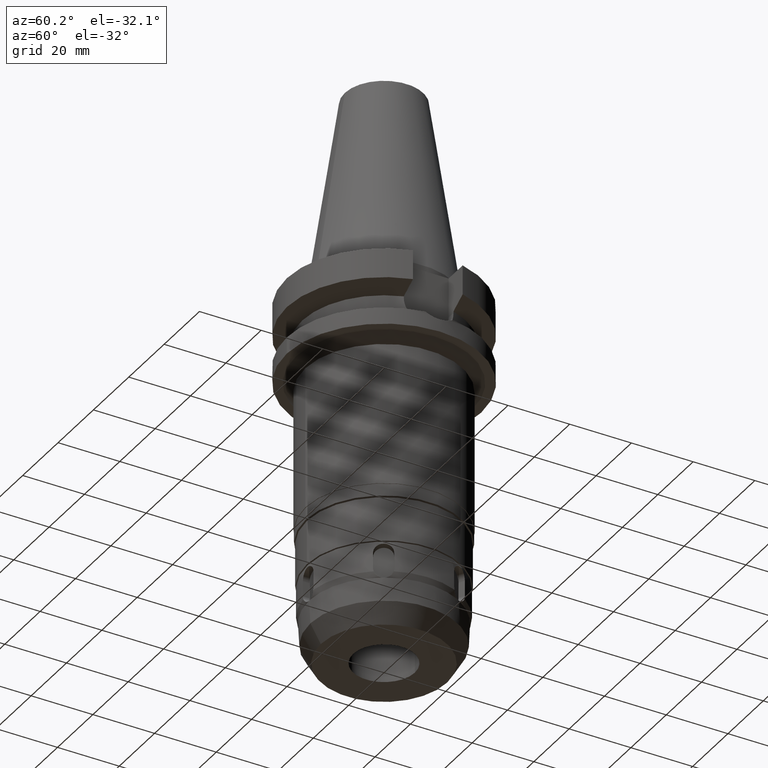
[diagram: clean part render]
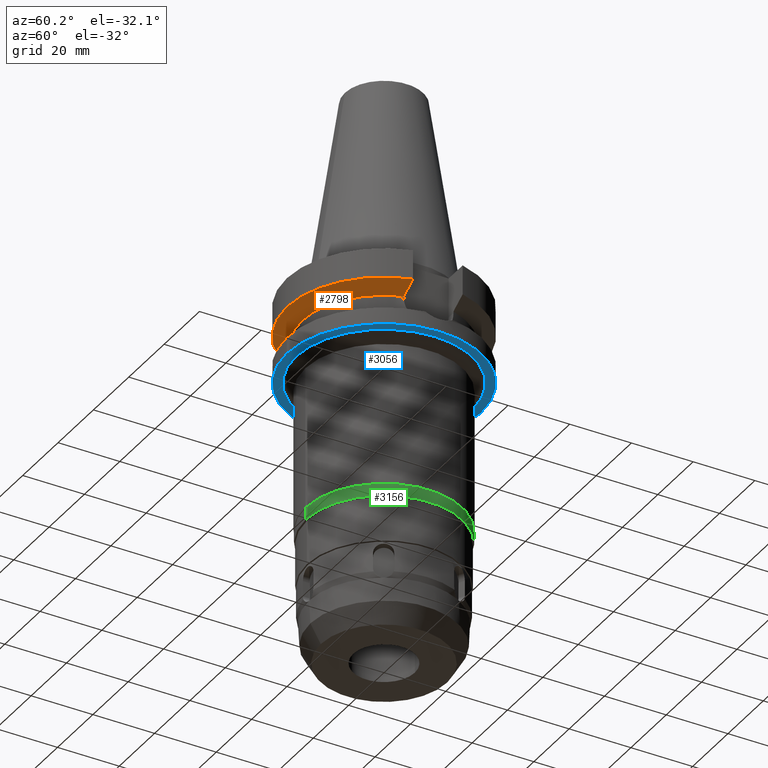
[diagram: same view with three faces highlighted in distinct colors, each labeled with its STEP entity id]
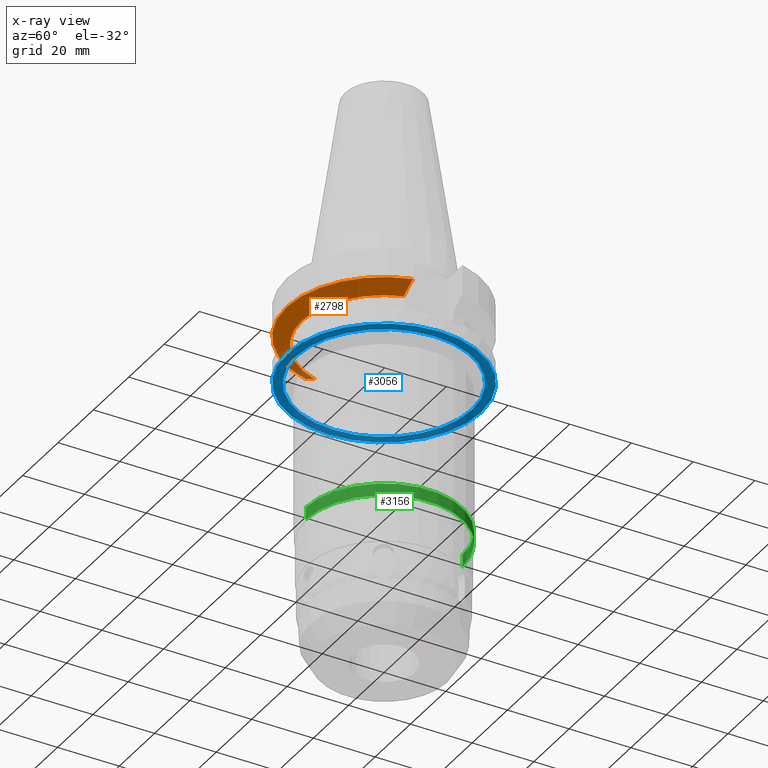
[diagram: x-ray of the same camera — body ghosted, the three highlighted faces saturated]
A machine part, auxiliary view with three faces highlighted in distinct colors.
The next image is the same camera in x-ray (body ghosted, the three faces saturated) — at least one of them is partly hidden behind the body in this view.
Their STEP definitions:

[orange] entity #2798 — the highlighted conical surface has half-angle 60 deg.
#207=CARTESIAN_POINT('',(-3.045402291362E1,-8.049999278069E0,
-1.156551215495E1));
#208=CARTESIAN_POINT('',(-2.987645774173E1,-8.049999278069E0,
-1.188789690590E1));
#209=CARTESIAN_POINT('',(-2.872091199309E1,-8.049999725664E0,
-1.253193850186E1));
#210=CARTESIAN_POINT('',(-2.698538662959E1,-8.050002043075E0,
-1.349404338032E1));
#211=CARTESIAN_POINT('',(-2.582730530415E1,-8.049995415717E0,
-1.413348340906E1));
#212=CARTESIAN_POINT('',(-2.524772413123E1,-8.049995415717E0,
-1.445229202852E1));
#251=CARTESIAN_POINT('',(0.E0,1.065333950388E-14,-1.156550565267E1));
#252=DIRECTION('',(0.E0,0.E0,1.E0));
#253=DIRECTION('',(-9.667943721520E-1,-2.555555555555E-1,0.E0));
#254=AXIS2_PLACEMENT_3D('',#251,#252,#253);
#259=CARTESIAN_POINT('',(0.E0,1.065333950388E-14,-1.156550565267E1));
#260=DIRECTION('',(0.E0,0.E0,1.E0));
#261=DIRECTION('',(0.E0,-1.E0,0.E0));
#262=AXIS2_PLACEMENT_3D('',#259,#260,#261);
#267=CARTESIAN_POINT('',(0.E0,1.065333950388E-14,-1.445225699861E1));
#268=DIRECTION('',(0.E0,0.E0,-1.E0));
#269=DIRECTION('',(9.527442516822E-1,-3.037735849057E-1,0.E0));
#270=AXIS2_PLACEMENT_3D('',#267,#268,#269);
#275=CARTESIAN_POINT('',(0.E0,1.065333950388E-14,-1.445225699861E1));
#276=DIRECTION('',(0.E0,0.E0,-1.E0));
#277=DIRECTION('',(0.E0,-1.E0,0.E0));
#278=AXIS2_PLACEMENT_3D('',#275,#276,#277);
#297=CARTESIAN_POINT('',(2.524772216368E1,-8.050001586691E0,-1.445224487490E1));
#298=CARTESIAN_POINT('',(2.582727361430E1,-8.050001586691E0,-1.413345267923E1));
#299=CARTESIAN_POINT('',(2.698547395453E1,-8.049999812067E0,-1.349419206939E1));
#300=CARTESIAN_POINT('',(2.872100163492E1,-8.049998277729E0,-1.253209184318E1));
#301=CARTESIAN_POINT('',(2.987642830899E1,-8.050004143922E0,-1.188786874689E1));
#302=CARTESIAN_POINT('',(3.045402162741E1,-8.050004143922E0,-1.156546832598E1));
#2532=CARTESIAN_POINT('',(-2.524772413123E1,-8.049995415717E0,
-1.445229202852E1));
#2533=VERTEX_POINT('',#2532);
#2534=CARTESIAN_POINT('',(2.524772266958E1,-8.05E0,-1.445225699861E1));
#2535=CARTESIAN_POINT('',(0.E0,-2.65E1,-1.445225699861E1));
#2536=VERTEX_POINT('',#2534);
#2537=VERTEX_POINT('',#2535);
#2548=CARTESIAN_POINT('',(-3.045402291362E1,-8.049999278069E0,
-1.156551215495E1));
#2549=VERTEX_POINT('',#2548);
#2575=CARTESIAN_POINT('',(0.E0,-3.15E1,-1.156550565267E1));
#2576=CARTESIAN_POINT('',(3.045402272279E1,-8.049999999999E0,
-1.156550565267E1));
#2577=VERTEX_POINT('',#2575);
#2578=VERTEX_POINT('',#2576);
#2782=CARTESIAN_POINT('',(0.E0,1.065333950388E-14,-1.300888132564E1));
#2783=DIRECTION('',(0.E0,0.E0,1.E0));
#2784=DIRECTION('',(0.E0,1.E0,0.E0));
#2785=AXIS2_PLACEMENT_3D('',#2782,#2783,#2784);
#2786=CONICAL_SURFACE('',#2785,2.9E1,6.E1);
#2787=ORIENTED_EDGE('',*,*,#2754,.F.);
#2789=ORIENTED_EDGE('',*,*,#2788,.T.);
#2791=ORIENTED_EDGE('',*,*,#2790,.T.);
#2793=ORIENTED_EDGE('',*,*,#2792,.F.);
#2794=ORIENTED_EDGE('',*,*,#2767,.T.);
#2795=ORIENTED_EDGE('',*,*,#2765,.T.);
#2796=EDGE_LOOP('',(#2787,#2789,#2791,#2793,#2794,#2795));
#2797=FACE_OUTER_BOUND('',#2796,.F.);
#213=B_SPLINE_CURVE_WITH_KNOTS('',3,(#207,#208,#209,#210,#211,#212),
.UNSPECIFIED.,.F.,.F.,(4,1,1,4),(0.E0,3.333333333333E-1,6.666666666667E-1,1.E0),
.UNSPECIFIED.);
#255=CIRCLE('',#254,3.15E1);
#263=CIRCLE('',#262,3.15E1);
#271=CIRCLE('',#270,2.65E1);
#279=CIRCLE('',#278,2.65E1);
#303=B_SPLINE_CURVE_WITH_KNOTS('',3,(#297,#298,#299,#300,#301,#302),
.UNSPECIFIED.,.F.,.F.,(4,1,1,4),(0.E0,3.333333333333E-1,6.666666666667E-1,1.E0),
.UNSPECIFIED.);
#2754=EDGE_CURVE('',#2549,#2533,#213,.T.);
#2765=EDGE_CURVE('',#2537,#2533,#279,.T.);
#2767=EDGE_CURVE('',#2536,#2537,#271,.T.);
#2788=EDGE_CURVE('',#2549,#2577,#255,.T.);
#2790=EDGE_CURVE('',#2577,#2578,#263,.T.);
#2792=EDGE_CURVE('',#2536,#2578,#303,.T.);
#2798=ADVANCED_FACE('',(#2797),#2786,.T.);

[blue] entity #3056 — the highlighted planar face has unit normal (0, 0, -1).
#627=CARTESIAN_POINT('',(0.E0,2.139090564071E-14,-2.7E1));
#628=DIRECTION('',(0.E0,0.E0,1.E0));
#629=DIRECTION('',(0.E0,-1.E0,0.E0));
#630=AXIS2_PLACEMENT_3D('',#627,#628,#629);
#635=CARTESIAN_POINT('',(0.E0,2.139090564071E-14,-2.7E1));
#636=DIRECTION('',(0.E0,0.E0,1.E0));
#637=DIRECTION('',(0.E0,1.E0,0.E0));
#638=AXIS2_PLACEMENT_3D('',#635,#636,#637);
#643=CARTESIAN_POINT('',(0.E0,0.E0,-2.7E1));
#644=DIRECTION('',(0.E0,0.E0,-1.E0));
#645=DIRECTION('',(0.E0,-1.E0,0.E0));
#646=AXIS2_PLACEMENT_3D('',#643,#644,#645);
#651=CARTESIAN_POINT('',(0.E0,0.E0,-2.7E1));
#652=DIRECTION('',(0.E0,0.E0,-1.E0));
#653=DIRECTION('',(0.E0,1.E0,0.E0));
#654=AXIS2_PLACEMENT_3D('',#651,#652,#653);
#2489=CARTESIAN_POINT('',(0.E0,2.85E1,-2.7E1));
#2490=VERTEX_POINT('',#2489);
#2491=CARTESIAN_POINT('',(0.E0,-2.85E1,-2.7E1));
#2492=VERTEX_POINT('',#2491);
#2493=CARTESIAN_POINT('',(0.E0,-3.15E1,-2.7E1));
#2494=CARTESIAN_POINT('',(0.E0,3.15E1,-2.7E1));
#2495=VERTEX_POINT('',#2493);
#2496=VERTEX_POINT('',#2494);
#3041=CARTESIAN_POINT('',(0.E0,0.E0,-2.7E1));
#3042=DIRECTION('',(0.E0,0.E0,-1.E0));
#3043=DIRECTION('',(0.E0,-1.E0,0.E0));
#3044=AXIS2_PLACEMENT_3D('',#3041,#3042,#3043);
#3045=PLANE('',#3044);
#3046=ORIENTED_EDGE('',*,*,#3003,.T.);
#3047=ORIENTED_EDGE('',*,*,#3034,.T.);
#3048=EDGE_LOOP('',(#3046,#3047));
#3049=FACE_OUTER_BOUND('',#3048,.F.);
#3051=ORIENTED_EDGE('',*,*,#3050,.T.);
#3053=ORIENTED_EDGE('',*,*,#3052,.T.);
#3054=EDGE_LOOP('',(#3051,#3053));
#3055=FACE_BOUND('',#3054,.F.);
#631=CIRCLE('',#630,3.15E1);
#639=CIRCLE('',#638,3.15E1);
#647=CIRCLE('',#646,2.85E1);
#655=CIRCLE('',#654,2.85E1);
#3003=EDGE_CURVE('',#2495,#2496,#631,.T.);
#3034=EDGE_CURVE('',#2496,#2495,#639,.T.);
#3050=EDGE_CURVE('',#2492,#2490,#647,.T.);
#3052=EDGE_CURVE('',#2490,#2492,#655,.T.);
#3056=ADVANCED_FACE('',(#3049,#3055),#3045,.T.);

[green] entity #3156 — the highlighted cylindrical surface (partial cylindrical patch) has radius 25.35 mm, axis along (0, 0, -1).
#727=CARTESIAN_POINT('',(0.E0,2.139090564071E-14,-7.62E1));
#728=DIRECTION('',(0.E0,0.E0,-1.E0));
#729=DIRECTION('',(0.E0,1.E0,0.E0));
#730=AXIS2_PLACEMENT_3D('',#727,#728,#729);
#735=DIRECTION('',(0.E0,1.687538997430E-14,-1.E0));
#736=VECTOR('',#735,4.E0);
#737=CARTESIAN_POINT('',(0.E0,-2.535E1,-7.62E1));
#738=LINE('',#737,#736);
#742=DIRECTION('',(0.E0,-1.865174681370E-14,-1.E0));
#743=VECTOR('',#742,4.E0);
#744=CARTESIAN_POINT('',(0.E0,2.535E1,-7.62E1));
#745=LINE('',#744,#743);
#764=CARTESIAN_POINT('',(0.E0,0.E0,-8.02E1));
#765=DIRECTION('',(0.E0,0.E0,1.E0));
#766=DIRECTION('',(0.E0,-1.E0,0.E0));
#767=AXIS2_PLACEMENT_3D('',#764,#765,#766);
#2473=CARTESIAN_POINT('',(0.E0,2.535E1,-8.02E1));
#2474=VERTEX_POINT('',#2473);
#2475=CARTESIAN_POINT('',(0.E0,-2.535E1,-8.02E1));
#2476=VERTEX_POINT('',#2475);
#2477=CARTESIAN_POINT('',(0.E0,2.535E1,-7.62E1));
#2478=VERTEX_POINT('',#2477);
#2479=CARTESIAN_POINT('',(0.E0,-2.535E1,-7.62E1));
#2480=VERTEX_POINT('',#2479);
#3144=CARTESIAN_POINT('',(0.E0,2.139090564071E-14,7.467E1));
#3145=DIRECTION('',(0.E0,0.E0,-1.E0));
#3146=DIRECTION('',(0.E0,-1.E0,0.E0));
#3147=AXIS2_PLACEMENT_3D('',#3144,#3145,#3146);
#3148=CYLINDRICAL_SURFACE('',#3147,2.535E1);
#3149=ORIENTED_EDGE('',*,*,#3134,.T.);
#3151=ORIENTED_EDGE('',*,*,#3150,.F.);
#3152=ORIENTED_EDGE('',*,*,#3137,.F.);
#3153=ORIENTED_EDGE('',*,*,#3124,.F.);
#3154=EDGE_LOOP('',(#3149,#3151,#3152,#3153));
#3155=FACE_OUTER_BOUND('',#3154,.F.);
#731=CIRCLE('',#730,2.535E1);
#768=CIRCLE('',#767,2.535E1);
#3124=EDGE_CURVE('',#2478,#2480,#731,.T.);
#3134=EDGE_CURVE('',#2478,#2474,#745,.T.);
#3137=EDGE_CURVE('',#2480,#2476,#738,.T.);
#3150=EDGE_CURVE('',#2476,#2474,#768,.T.);
#3156=ADVANCED_FACE('',(#3155),#3148,.T.);